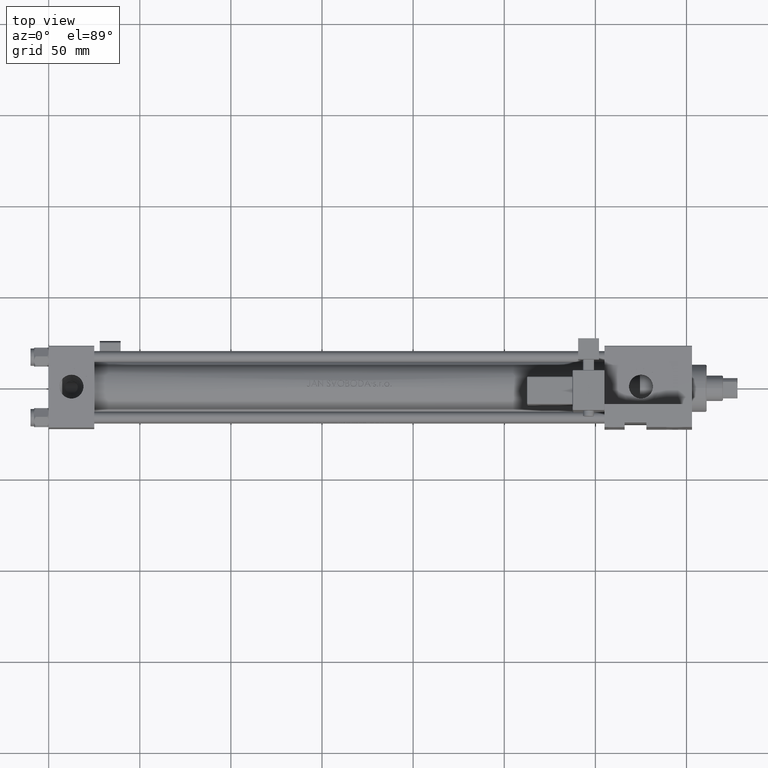
[diagram: clean part render]
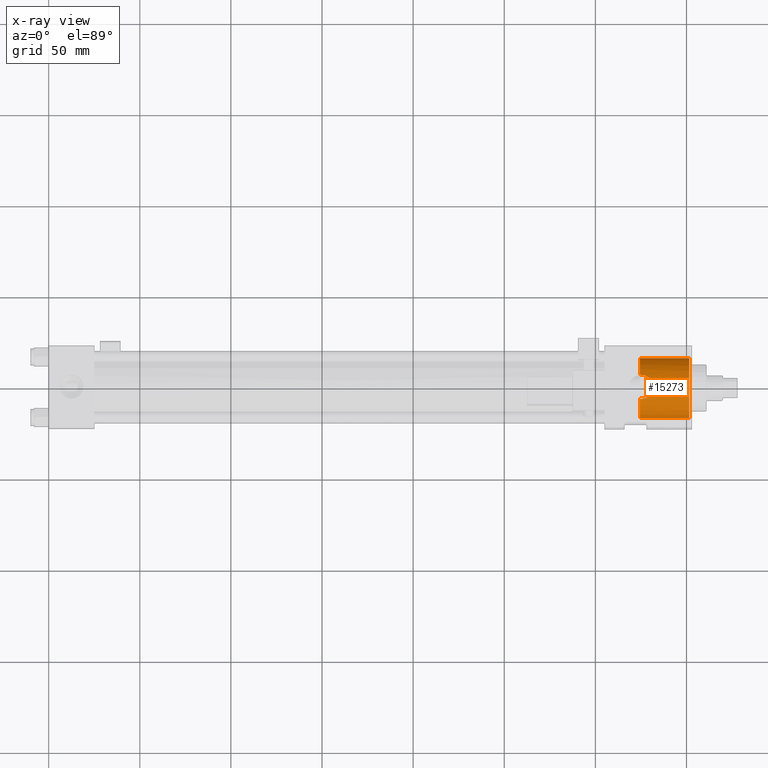
[diagram: x-ray — body ghosted, one internal face saturated and labeled with its STEP entity id]
A machine part, top view, then the same camera in x-ray: the body is ghosted and one INTERNAL B-rep face — a face not visible from any outside direction — is saturated and labeled: STEP entity #15273.
In plain terms, the highlighted cylindrical surface (edge-blend (fillet) strip) has radius 16.5 mm, axis along (1, 0, 0).
Its self-contained STEP definition (entity closure, byte-faithful):
#600 = DIRECTION ( 'NONE',  ( 1.000000000000000000, -0.000000000000000000, -0.000000000000000000 ) ) ;
#853 = CARTESIAN_POINT ( 'NONE',  ( 324.3000000000000114, 2.020667218593133100E-15, 16.00000000000000355 ) ) ;
#1676 = VERTEX_POINT ( 'NONE', #14481 ) ;
#1725 = EDGE_LOOP ( 'NONE', ( #4227, #4111, #45111, #6356, #38329, #47350, #18254, #26832 ) ) ;
#2083 = CARTESIAN_POINT ( 'NONE',  ( 330.8954531384125062, -16.13952493269048105, 2.953520058509849999 ) ) ;
#2192 = VERTEX_POINT ( 'NONE', #16779 ) ;
#2342 = CARTESIAN_POINT ( 'NONE',  ( 325.4341129154130385, -15.33895693976615071, -6.579999999999984972 ) ) ;
#2406 = AXIS2_PLACEMENT_3D ( 'NONE', #30961, #27918, #7972 ) ;
#2434 = CARTESIAN_POINT ( 'NONE',  ( 324.3000000000000114, 0.000000000000000000, -16.99999999999999645 ) ) ;
#2586 = CARTESIAN_POINT ( 'NONE',  ( 329.8113393517018608, -16.01015148505542740, -4.493698987271226741 ) ) ;
#3024 = CARTESIAN_POINT ( 'NONE',  ( 324.3000000000000114, 0.000000000000000000, -0.4999999999999967804 ) ) ;
#3089 = CARTESIAN_POINT ( 'NONE',  ( 326.7232862870477561, -15.42257739805874550, -6.365374442724274218 ) ) ;
#3322 = VERTEX_POINT ( 'NONE', #853 ) ;
#4111 = ORIENTED_EDGE ( 'NONE', *, *, #14583, .T. ) ;
#4227 = ORIENTED_EDGE ( 'NONE', *, *, #28374, .F. ) ;
#4378 = LINE ( 'NONE', #12442, #13677 ) ;
#6356 = ORIENTED_EDGE ( 'NONE', *, *, #39631, .F. ) ;
#6848 = CARTESIAN_POINT ( 'NONE',  ( 331.3629836567161533, -16.45835575231208026, -1.689905106513905020 ) ) ;
#7771 = DIRECTION ( 'NONE',  ( 0.000000000000000000, 0.000000000000000000, -1.000000000000000000 ) ) ;
#7972 = DIRECTION ( 'NONE',  ( 0.000000000000000000, 0.000000000000000000, -1.000000000000000000 ) ) ;
#8598 = CARTESIAN_POINT ( 'NONE',  ( 351.5000000000000000, 0.000000000000000000, -0.4999999999999967804 ) ) ;
#10146 = CARTESIAN_POINT ( 'NONE',  ( 326.7143978928017987, -15.00324899027945946, 6.367404972463829083 ) ) ;
#10394 = CARTESIAN_POINT ( 'NONE',  ( 329.9408583155631050, -15.76925504840587244, 4.366124845913799568 ) ) ;
#10640 = CARTESIAN_POINT ( 'NONE',  ( 331.4150129121089776, -16.47223324460452787, -1.480115068709078052 ) ) ;
#11525 = CARTESIAN_POINT ( 'NONE',  ( 325.0000000000000568, -14.90381159301204939, 6.579999999999992077 ) ) ;
#11777 = CARTESIAN_POINT ( 'NONE',  ( 324.3000000000000114, -14.92149255237201189, 6.542660009506819918 ) ) ;
#12442 = CARTESIAN_POINT ( 'NONE',  ( 324.3000000000000114, 0.000000000000000000, -16.99999999999999645 ) ) ;
#12598 = AXIS2_PLACEMENT_3D ( 'NONE', #3024, #30028, #7771 ) ;
#13437 = CARTESIAN_POINT ( 'NONE',  ( 327.9277837456257885, -15.59286003707434531, -5.896700753237607451 ) ) ;
#13677 = VECTOR ( 'NONE', #600, 1000.000000000000000 ) ;
#14186 = CARTESIAN_POINT ( 'NONE',  ( 331.5326949847449782, -16.44614851479039075, 0.8985633279690308228 ) ) ;
#14442 = CARTESIAN_POINT ( 'NONE',  ( 328.3079685215799941, -15.66216623791878071, -5.692129803036767299 ) ) ;
#14481 = CARTESIAN_POINT ( 'NONE',  ( 324.3000000000000114, -14.92149255237201189, 6.542660009506819918 ) ) ;
#14583 = EDGE_CURVE ( 'NONE', #3322, #2192, #27700, .T. ) ;
#14588 = EDGE_CURVE ( 'NONE', #22219, #15390, #20129, .T. ) ;
#14849 = FACE_OUTER_BOUND ( 'NONE', #1725, .T. ) ;
#15273 = ADVANCED_FACE ( 'NONE', ( #14849 ), #45686, .F. ) ;
#15390 = VERTEX_POINT ( 'NONE', #21866 ) ;
#15832 = CARTESIAN_POINT ( 'NONE',  ( 325.0000000000000568, -15.33895693976615071, -6.579999999999984972 ) ) ;
#16079 = AXIS2_PLACEMENT_3D ( 'NONE', #8598, #42229, #23999 ) ;
#16779 = CARTESIAN_POINT ( 'NONE',  ( 351.5000000000000000, 2.020667218593133100E-15, 16.00000000000000355 ) ) ;
#17473 = CARTESIAN_POINT ( 'NONE',  ( 330.6923054650131917, -16.05392064770339289, 3.328442527785249627 ) ) ;
#17728 = CARTESIAN_POINT ( 'NONE',  ( 330.3567953874910472, -16.16208858154858419, -3.827128066706334764 ) ) ;
#17974 = CARTESIAN_POINT ( 'NONE',  ( 329.9566738476337946, -16.04954766180734538, -4.332917015252665038 ) ) ;
#18218 = CARTESIAN_POINT ( 'NONE',  ( 327.1384851323426233, -15.47127985552786633, -6.237636073092440725 ) ) ;
#18254 = ORIENTED_EDGE ( 'NONE', *, *, #41975, .T. ) ;
#18468 = CARTESIAN_POINT ( 'NONE',  ( 331.5709677562896900, -16.50116693238018684, -0.4077177105366008858 ) ) ;
#19861 = CARTESIAN_POINT ( 'NONE',  ( 324.7674315422764835, -15.33895693976615071, -6.579999999999984972 ) ) ;
#20129 = B_SPLINE_CURVE_WITH_KNOTS ( 'NONE', 3,
 ( #23902, #43881, #19861, #15832 ),
 .UNSPECIFIED., .F., .F.,
 ( 4, 4 ),
 ( 0.000000000000000000, 0.0006965685122027478289 ),
 .UNSPECIFIED. ) ;
#20482 = VERTEX_POINT ( 'NONE', #2434 ) ;
#21253 = CARTESIAN_POINT ( 'NONE',  ( 331.2380364384483187, -16.42309107580809524, -2.104813929365229264 ) ) ;
#21866 = CARTESIAN_POINT ( 'NONE',  ( 325.0000000000000568, -15.33895693976615071, -6.579999999999984972 ) ) ;
#21894 = VERTEX_POINT ( 'NONE', #41047 ) ;
#22001 = CARTESIAN_POINT ( 'NONE',  ( 329.0044194477452493, -15.47541940897810164, 5.225555808626266341 ) ) ;
#22219 = VERTEX_POINT ( 'NONE', #46763 ) ;
#22244 = CARTESIAN_POINT ( 'NONE',  ( 325.4370608312318609, -14.90381159301204583, 6.579999999999989413 ) ) ;
#23902 = CARTESIAN_POINT ( 'NONE',  ( 324.3000000000000114, -15.35370509061272415, -6.542660009506818142 ) ) ;
#23999 = DIRECTION ( 'NONE',  ( 0.000000000000000000, 0.000000000000000000, 1.000000000000000000 ) ) ;
#24160 = CARTESIAN_POINT ( 'NONE',  ( 324.3000000000000114, 2.020667218593133100E-15, 16.00000000000000355 ) ) ;
#25509 = CIRCLE ( 'NONE', #12598, 16.50000000000000000 ) ;
#25558 = CARTESIAN_POINT ( 'NONE',  ( 327.7335635805854395, -15.56042039305880209, -5.989176551187647135 ) ) ;
#25806 = CARTESIAN_POINT ( 'NONE',  ( 329.4913386763623180, -15.62185234982736048, 4.813414449261109063 ) ) ;
#26045 = CARTESIAN_POINT ( 'NONE',  ( 325.8672262143390981, -14.92450725701554681, 6.536889544069370395 ) ) ;
#26185 = CARTESIAN_POINT ( 'NONE',  ( 324.5326410810857851, -14.90974480628698196, 6.567550307416747835 ) ) ;
#26832 = ORIENTED_EDGE ( 'NONE', *, *, #35636, .T. ) ;
#26934 = CARTESIAN_POINT ( 'NONE',  ( 324.7674089415834260, -14.90381159301204761, 6.579999999999984972 ) ) ;
#27700 = LINE ( 'NONE', #24160, #31263 ) ;
#27918 = DIRECTION ( 'NONE',  ( 1.000000000000000000, 0.000000000000000000, 0.000000000000000000 ) ) ;
#28374 = EDGE_CURVE ( 'NONE', #3322, #1676, #25509, .T. ) ;
#28846 = CARTESIAN_POINT ( 'NONE',  ( 325.8656063113635355, -15.35602623177227777, -6.537463815344770168 ) ) ;
#29340 = CARTESIAN_POINT ( 'NONE',  ( 330.9152909999796179, -16.32739268020747403, -2.914679961596268853 ) ) ;
#29595 = CARTESIAN_POINT ( 'NONE',  ( 331.3588356637530978, -16.35197207035328759, 1.746060943800903820 ) ) ;
#29850 = CARTESIAN_POINT ( 'NONE',  ( 329.3574914770861710, -15.89197804239858591, -4.948973207531822460 ) ) ;
#30028 = DIRECTION ( 'NONE',  ( 1.000000000000000000, 0.000000000000000000, 0.000000000000000000 ) ) ;
#30961 = CARTESIAN_POINT ( 'NONE',  ( 324.3000000000000114, 0.000000000000000000, -0.4999999999999967804 ) ) ;
#31252 = DIRECTION ( 'NONE',  ( 1.000000000000000000, -0.000000000000000000, -0.000000000000000000 ) ) ;
#31263 = VECTOR ( 'NONE', #35044, 1000.000000000000000 ) ;
#32892 = CARTESIAN_POINT ( 'NONE',  ( 328.8315046802826487, -15.42728545299678800, 5.353628400115717056 ) ) ;
#33073 = B_SPLINE_CURVE_WITH_KNOTS ( 'NONE', 3,
 ( #11525, #26934, #26185, #11777 ),
 .UNSPECIFIED., .F., .F.,
 ( 4, 4 ),
 ( 0.02150003536765269369, 0.02219197285507958084 ),
 .UNSPECIFIED. ) ;
#33139 = CARTESIAN_POINT ( 'NONE',  ( 330.7127167590448380, -16.26592437390081614, -3.293073257702346268 ) ) ;
#33381 = CARTESIAN_POINT ( 'NONE',  ( 330.2294062955909908, -16.12552788553619010, -3.999511881281994086 ) ) ;
#33642 = CARTESIAN_POINT ( 'NONE',  ( 327.1352023701871303, -15.06229937542717501, 6.238648670809844532 ) ) ;
#34449 = B_SPLINE_CURVE_WITH_KNOTS ( 'NONE', 3,
 ( #41231, #2342, #28846, #3089, #18218, #25558, #13437, #14442, #45277, #37188, #29850, #2586, #17974, #33381, #17728, #33139, #29340, #37685, #21253, #6848, #10640, #41469, #36680, #18468, #48819, #45033, #14186, #29595, #48581, #2083, #17473, #48077, #10394, #25806, #49078, #22001, #32892, #44781, #37435, #33642, #10146, #26045, #22244, #44278 ),
 .UNSPECIFIED., .F., .F.,
 ( 4, 2, 2, 2, 2, 2, 2, 2, 2, 2, 2, 2, 2, 2, 2, 2, 2, 2, 2, 2, 2, 4 ),
 ( 0.0006965685122027478289, 0.001996785190668483225, 0.003297001869134218947, 0.003947110208367009612, 0.004597218547599802446, 0.005897435226065384645, 0.006547543565298231255, 0.007197651904531077866, 0.008497868582996679146, 0.009147976922229478919, 0.009798085261462280426, 0.01044819360069508193, 0.01109830193992788171, 0.01239851861839348299, 0.01369873529685908427, 0.01499895197532468728, 0.01629916865379028856, 0.01694927699302309007, 0.01759938533225588811, 0.01889960201072149112, 0.02019981868918709414, 0.02150003536765269369 ),
 .UNSPECIFIED. ) ;
#35044 = DIRECTION ( 'NONE',  ( 1.000000000000000000, -0.000000000000000000, -0.000000000000000000 ) ) ;
#35636 = EDGE_CURVE ( 'NONE', #45932, #1676, #33073, .T. ) ;
#36290 = CIRCLE ( 'NONE', #2406, 16.50000000000000000 ) ;
#36680 = CARTESIAN_POINT ( 'NONE',  ( 331.5296148987571883, -16.49789263875700485, -0.8414156283381257762 ) ) ;
#37188 = CARTESIAN_POINT ( 'NONE',  ( 329.0284776740527377, -15.81237954518120326, -5.220358165594012334 ) ) ;
#37435 = CARTESIAN_POINT ( 'NONE',  ( 327.9258909046372992, -15.20539478107088271, 5.909229121773021731 ) ) ;
#37685 = CARTESIAN_POINT ( 'NONE',  ( 331.1646761068265619, -16.40157007731483318, -2.310968459578442769 ) ) ;
#37853 = CARTESIAN_POINT ( 'NONE',  ( 324.3000000000000114, 0.000000000000000000, -0.4999999999999967804 ) ) ;
#38329 = ORIENTED_EDGE ( 'NONE', *, *, #39247, .F. ) ;
#39247 = EDGE_CURVE ( 'NONE', #22219, #20482, #36290, .T. ) ;
#39631 = EDGE_CURVE ( 'NONE', #20482, #21894, #4378, .T. ) ;
#39899 = EDGE_CURVE ( 'NONE', #2192, #21894, #45961, .T. ) ;
#41047 = CARTESIAN_POINT ( 'NONE',  ( 351.5000000000000000, 0.000000000000000000, -16.99999999999999645 ) ) ;
#41231 = CARTESIAN_POINT ( 'NONE',  ( 325.0000000000000568, -15.33895693976615071, -6.579999999999984972 ) ) ;
#41469 = CARTESIAN_POINT ( 'NONE',  ( 331.4983281949434399, -16.49200114892362379, -1.055870233478324316 ) ) ;
#41778 = AXIS2_PLACEMENT_3D ( 'NONE', #37853, #31252, #46181 ) ;
#41975 = EDGE_CURVE ( 'NONE', #15390, #45932, #34449, .T. ) ;
#42229 = DIRECTION ( 'NONE',  ( 1.000000000000000000, 0.000000000000000000, 0.000000000000000000 ) ) ;
#43881 = CARTESIAN_POINT ( 'NONE',  ( 324.5341069302495498, -15.34384745132401839, -6.567707138799266708 ) ) ;
#44107 = CARTESIAN_POINT ( 'NONE',  ( 325.0000000000000568, -14.90381159301204939, 6.579999999999992077 ) ) ;
#44278 = CARTESIAN_POINT ( 'NONE',  ( 325.0000000000000568, -14.90381159301204939, 6.579999999999992077 ) ) ;
#44781 = CARTESIAN_POINT ( 'NONE',  ( 328.3001356602296710, -15.28950433861737324, 5.708499388656712803 ) ) ;
#45033 = CARTESIAN_POINT ( 'NONE',  ( 331.5778417032764196, -16.47736198929498030, 0.4683372378626163290 ) ) ;
#45111 = ORIENTED_EDGE ( 'NONE', *, *, #39899, .T. ) ;
#45277 = CARTESIAN_POINT ( 'NONE',  ( 328.4940309364367863, -15.69908748261052445, -5.579806515649024412 ) ) ;
#45686 = CYLINDRICAL_SURFACE ( 'NONE', #41778, 16.50000000000000000 ) ;
#45932 = VERTEX_POINT ( 'NONE', #44107 ) ;
#45961 = CIRCLE ( 'NONE', #16079, 16.50000000000000000 ) ;
#46181 = DIRECTION ( 'NONE',  ( 0.000000000000000000, 0.000000000000000000, -1.000000000000000000 ) ) ;
#46763 = CARTESIAN_POINT ( 'NONE',  ( 324.3000000000000114, -15.35370509061272415, -6.542660009506818142 ) ) ;
#47350 = ORIENTED_EDGE ( 'NONE', *, *, #14588, .T. ) ;
#48077 = CARTESIAN_POINT ( 'NONE',  ( 330.2113291612783428, -15.86733303061777001, 4.040163306179453073 ) ) ;
#48581 = CARTESIAN_POINT ( 'NONE',  ( 331.2284342886651984, -16.28834046731283181, 2.164775913349327841 ) ) ;
#48819 = CARTESIAN_POINT ( 'NONE',  ( 331.5809669525391996, -16.49848120805964058, -0.1871076695943676427 ) ) ;
#49078 = CARTESIAN_POINT ( 'NONE',  ( 329.3341328556404051, -15.57266778701109544, 4.955512184649332852 ) ) ;